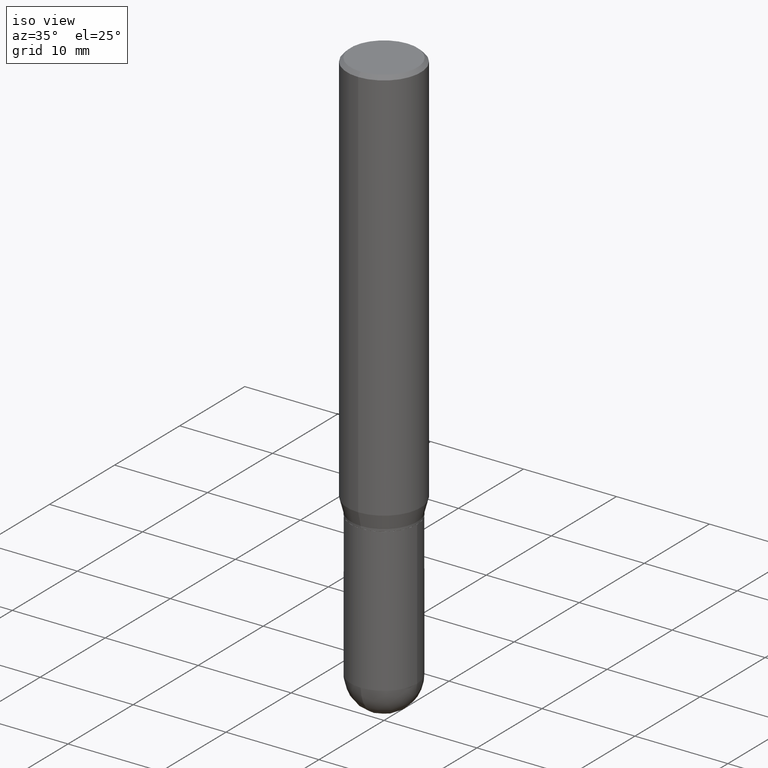
[diagram: clean part render]
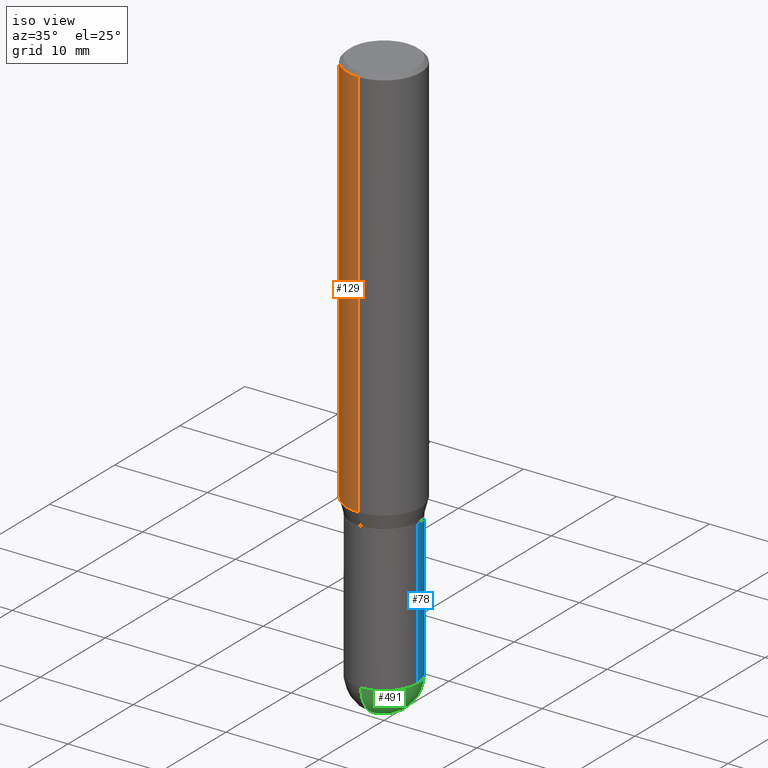
[diagram: same view with three faces highlighted in distinct colors, each labeled with its STEP entity id]
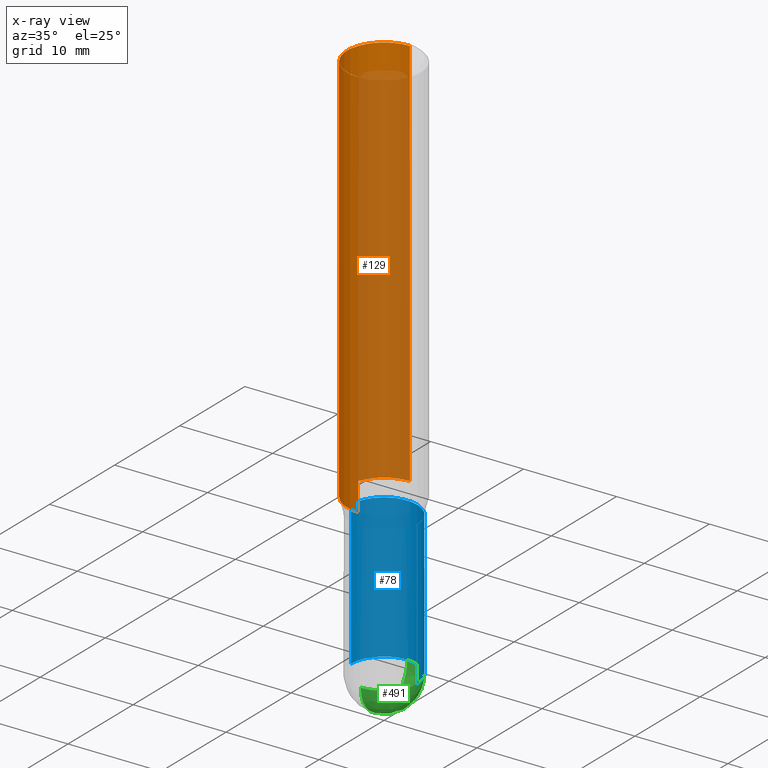
[diagram: x-ray of the same camera — body ghosted, the three highlighted faces saturated]
A machine part, iso view with three faces highlighted in distinct colors.
The next image is the same camera in x-ray (body ghosted, the three faces saturated) — at least one of them is partly hidden behind the body in this view.
Their STEP definitions:

[orange] entity #129 — the highlighted cylindrical surface (partial cylindrical patch) has radius 3.9688 mm, axis along (-0, 0, 1).
#19 = DIRECTION ( 'NONE',  ( -2.445343774695752109E-29, 3.491660391052294645E-15, 1.000000000000000000 ) ) ;
#21 = EDGE_CURVE ( 'NONE', #259, #359, #60, .T. ) ;
#22 = ORIENTED_EDGE ( 'NONE', *, *, #417, .F. ) ;
#35 = LINE ( 'NONE', #506, #58 ) ;
#49 = VERTEX_POINT ( 'NONE', #50 ) ;
#50 = CARTESIAN_POINT ( 'NONE',  ( 1.110223024625197561E-15, 0.1562499999999999445, -0.01500000000000051466 ) ) ;
#56 = DIRECTION ( 'NONE',  ( -6.982962677686265133E-15, -1.000000000000000000, 3.496765431890256920E-15 ) ) ;
#58 = VECTOR ( 'NONE', #203, 39.37007874015748143 ) ;
#60 = CIRCLE ( 'NONE', #351, 0.1562500000000000000 ) ;
#91 = CARTESIAN_POINT ( 'NONE',  ( 4.112073964147616750E-29, -5.871553085609828097E-15, -1.681593404861546848 ) ) ;
#97 = FACE_OUTER_BOUND ( 'NONE', #342, .T. ) ;
#98 = VECTOR ( 'NONE', #151, 39.37007874015748143 ) ;
#104 = VERTEX_POINT ( 'NONE', #292 ) ;
#129 = ADVANCED_FACE ( 'NONE', ( #97 ), #212, .T. ) ;
#138 = ORIENTED_EDGE ( 'NONE', *, *, #308, .T. ) ;
#151 = DIRECTION ( 'NONE',  ( -2.445343774695752109E-29, 3.491660391052294645E-15, 1.000000000000000000 ) ) ;
#197 = CARTESIAN_POINT ( 'NONE',  ( -1.091087918388437956E-15, -0.1562500000000058842, -1.681593404861546404 ) ) ;
#203 = DIRECTION ( 'NONE',  ( -2.445343774695752109E-29, 3.491660391052294645E-15, 1.000000000000000000 ) ) ;
#212 = CYLINDRICAL_SURFACE ( 'NONE', #480, 0.1562500000000000000 ) ;
#259 = VERTEX_POINT ( 'NONE', #352 ) ;
#265 = ORIENTED_EDGE ( 'NONE', *, *, #21, .T. ) ;
#292 = CARTESIAN_POINT ( 'NONE',  ( -1.091087918388478779E-15, -0.1562500000000000833, -0.01499999999999942178 ) ) ;
#308 = EDGE_CURVE ( 'NONE', #359, #104, #502, .T. ) ;
#315 = DIRECTION ( 'NONE',  ( -2.445343774695752109E-29, 3.491660391052294645E-15, 1.000000000000000000 ) ) ;
#331 = DIRECTION ( 'NONE',  ( -2.445343774695752109E-29, 3.491660391052294645E-15, 1.000000000000000000 ) ) ;
#340 = DIRECTION ( 'NONE',  ( -6.982962677686265133E-15, -1.000000000000000000, 3.491660391052295040E-15 ) ) ;
#342 = EDGE_LOOP ( 'NONE', ( #435, #265, #138, #22 ) ) ;
#351 = AXIS2_PLACEMENT_3D ( 'NONE', #91, #331, #56 ) ;
#352 = CARTESIAN_POINT ( 'NONE',  ( 1.110223024625197561E-15, 0.1562499999999941436, -1.681593404861547514 ) ) ;
#358 = CARTESIAN_POINT ( 'NONE',  ( 3.668015662043620053E-31, -5.237490586578430900E-17, -0.01499999999999996822 ) ) ;
#359 = VERTEX_POINT ( 'NONE', #197 ) ;
#377 = CARTESIAN_POINT ( 'NONE',  ( 0.000000000000000000, 0.000000000000000000, 0.000000000000000000 ) ) ;
#385 = CARTESIAN_POINT ( 'NONE',  ( -1.091087918388478976E-15, -0.1562500000000000000, 5.455719361019211000E-16 ) ) ;
#417 = EDGE_CURVE ( 'NONE', #49, #104, #432, .T. ) ;
#426 = DIRECTION ( 'NONE',  ( -6.982962677686265133E-15, -1.000000000000000000, 3.496765431890256920E-15 ) ) ;
#432 = CIRCLE ( 'NONE', #467, 0.1562500000000000000 ) ;
#435 = ORIENTED_EDGE ( 'NONE', *, *, #487, .F. ) ;
#467 = AXIS2_PLACEMENT_3D ( 'NONE', #358, #315, #426 ) ;
#480 = AXIS2_PLACEMENT_3D ( 'NONE', #377, #19, #340 ) ;
#487 = EDGE_CURVE ( 'NONE', #259, #49, #35, .T. ) ;
#502 = LINE ( 'NONE', #385, #98 ) ;
#506 = CARTESIAN_POINT ( 'NONE',  ( 1.110223024625156343E-15, 0.1562500000000000000, -5.455719361019211000E-16 ) ) ;

[blue] entity #78 — the highlighted cylindrical surface (partial cylindrical patch) has radius 3.5712 mm, axis along (-0, 0, 1).
#36 = EDGE_CURVE ( 'NONE', #42, #281, #412, .T. ) ;
#37 = ORIENTED_EDGE ( 'NONE', *, *, #344, .T. ) ;
#41 = EDGE_CURVE ( 'NONE', #245, #285, #388, .T. ) ;
#42 = VERTEX_POINT ( 'NONE', #407 ) ;
#46 = VERTEX_POINT ( 'NONE', #131 ) ;
#68 = CARTESIAN_POINT ( 'NONE',  ( -0.1406000000000000028, -6.174923620442310269E-15, -1.750000000000000222 ) ) ;
#72 = DIRECTION ( 'NONE',  ( -2.445468806185136877E-29, 3.491481338843145188E-15, 1.000000000000000000 ) ) ;
#78 = ADVANCED_FACE ( 'NONE', ( #221 ), #372, .T. ) ;
#94 = ORIENTED_EDGE ( 'NONE', *, *, #201, .T. ) ;
#100 = AXIS2_PLACEMENT_3D ( 'NONE', #405, #473, #362 ) ;
#118 = LINE ( 'NONE', #460, #140 ) ;
#123 = AXIS2_PLACEMENT_3D ( 'NONE', #378, #418, #452 ) ;
#131 = CARTESIAN_POINT ( 'NONE',  ( 0.1406000000000000583, -8.155751259403701439E-15, -2.359399999999999942 ) ) ;
#140 = VECTOR ( 'NONE', #72, 39.37007874015748143 ) ;
#153 = ORIENTED_EDGE ( 'NONE', *, *, #41, .F. ) ;
#166 = EDGE_CURVE ( 'NONE', #46, #245, #416, .T. ) ;
#169 = AXIS2_PLACEMENT_3D ( 'NONE', #174, #333, #295 ) ;
#170 = AXIS2_PLACEMENT_3D ( 'NONE', #181, #365, #439 ) ;
#174 = CARTESIAN_POINT ( 'NONE',  ( 4.279570410823989044E-29, -6.110092342975505460E-15, -1.750000000000000222 ) ) ;
#181 = CARTESIAN_POINT ( 'NONE',  ( 0.000000000000000000, 0.000000000000000000, 0.000000000000000000 ) ) ;
#191 = CARTESIAN_POINT ( 'NONE',  ( 0.1406000000000000028, -7.091896895458194566E-15, -1.750000000000000222 ) ) ;
#201 = EDGE_CURVE ( 'NONE', #46, #42, #222, .T. ) ;
#221 = FACE_OUTER_BOUND ( 'NONE', #488, .T. ) ;
#222 = CIRCLE ( 'NONE', #123, 0.1406000000000000305 ) ;
#230 = CARTESIAN_POINT ( 'NONE',  ( 0.1406000000000000028, -9.818045524826893030E-16, 6.855904546769086274E-30 ) ) ;
#245 = VERTEX_POINT ( 'NONE', #191 ) ;
#272 = CARTESIAN_POINT ( 'NONE',  ( -0.1406000000000000583, -6.174923620442310269E-15, -2.359399999999999942 ) ) ;
#281 = VERTEX_POINT ( 'NONE', #272 ) ;
#285 = VERTEX_POINT ( 'NONE', #68 ) ;
#290 = ORIENTED_EDGE ( 'NONE', *, *, #36, .T. ) ;
#295 = DIRECTION ( 'NONE',  ( 1.000000000000000000, -6.982962677686265133E-15, 0.000000000000000000 ) ) ;
#333 = DIRECTION ( 'NONE',  ( -2.445468806185136597E-29, 3.491481338843145583E-15, 1.000000000000000000 ) ) ;
#344 = EDGE_CURVE ( 'NONE', #281, #285, #118, .T. ) ;
#362 = DIRECTION ( 'NONE',  ( 1.000000000000000000, -6.982962677686270655E-15, 0.000000000000000000 ) ) ;
#365 = DIRECTION ( 'NONE',  ( -2.445468806185136597E-29, 3.491481338843145583E-15, 1.000000000000000000 ) ) ;
#372 = CYLINDRICAL_SURFACE ( 'NONE', #170, 0.1406000000000000028 ) ;
#378 = CARTESIAN_POINT ( 'NONE',  ( 5.769839101313211634E-29, -8.237801070866517629E-15, -2.359399999999999942 ) ) ;
#388 = CIRCLE ( 'NONE', #169, 0.1406000000000000028 ) ;
#405 = CARTESIAN_POINT ( 'NONE',  ( 5.769839101313211634E-29, -8.237801070866517629E-15, -2.359399999999999942 ) ) ;
#407 = CARTESIAN_POINT ( 'NONE',  ( 9.818045524827470871E-16, 0.1405999999999918426, -2.359400000000000386 ) ) ;
#411 = VECTOR ( 'NONE', #450, 39.37007874015748143 ) ;
#412 = CIRCLE ( 'NONE', #100, 0.1406000000000000305 ) ;
#416 = LINE ( 'NONE', #230, #411 ) ;
#418 = DIRECTION ( 'NONE',  ( -2.445468806185136597E-29, 3.491481338843145583E-15, 1.000000000000000000 ) ) ;
#428 = ORIENTED_EDGE ( 'NONE', *, *, #166, .F. ) ;
#439 = DIRECTION ( 'NONE',  ( 1.000000000000000000, -6.982962677686268288E-15, 4.876176775795936353E-29 ) ) ;
#450 = DIRECTION ( 'NONE',  ( -2.445468806185136877E-29, 3.491481338843145188E-15, 1.000000000000000000 ) ) ;
#452 = DIRECTION ( 'NONE',  ( 1.000000000000000000, -6.982962677686270655E-15, 0.000000000000000000 ) ) ;
#460 = CARTESIAN_POINT ( 'NONE',  ( -0.1406000000000000028, 9.990230864787008809E-16, -6.916022736898399140E-30 ) ) ;
#473 = DIRECTION ( 'NONE',  ( -2.445468806185136597E-29, 3.491481338843145583E-15, 1.000000000000000000 ) ) ;
#488 = EDGE_LOOP ( 'NONE', ( #290, #37, #153, #428, #94 ) ) ;

[green] entity #491 — the highlighted spherical surface has radius 3.5712 mm.
#40 = ORIENTED_EDGE ( 'NONE', *, *, #201, .F. ) ;
#42 = VERTEX_POINT ( 'NONE', #407 ) ;
#46 = VERTEX_POINT ( 'NONE', #131 ) ;
#48 = AXIS2_PLACEMENT_3D ( 'NONE', #394, #512, #464 ) ;
#76 = DIRECTION ( 'NONE',  ( -1.000000000000000000, 7.105427357601001070E-15, -4.926315508542082329E-29 ) ) ;
#85 = ORIENTED_EDGE ( 'NONE', *, *, #120, .T. ) ;
#120 = EDGE_CURVE ( 'NONE', #241, #42, #237, .T. ) ;
#122 = FACE_OUTER_BOUND ( 'NONE', #381, .T. ) ;
#123 = AXIS2_PLACEMENT_3D ( 'NONE', #378, #418, #452 ) ;
#131 = CARTESIAN_POINT ( 'NONE',  ( 0.1406000000000000583, -8.155751259403701439E-15, -2.359399999999999942 ) ) ;
#200 = CARTESIAN_POINT ( 'NONE',  ( 5.757815463287349061E-29, -8.255019604862529009E-15, -2.359399999999999942 ) ) ;
#201 = EDGE_CURVE ( 'NONE', #46, #42, #222, .T. ) ;
#222 = CIRCLE ( 'NONE', #123, 0.1406000000000000305 ) ;
#237 = CIRCLE ( 'NONE', #395, 0.1406000000000000860 ) ;
#241 = VERTEX_POINT ( 'NONE', #266 ) ;
#266 = CARTESIAN_POINT ( 'NONE',  ( 6.107660196449910766E-29, -8.737312614105869844E-15, -2.500000000000000000 ) ) ;
#299 = CARTESIAN_POINT ( 'NONE',  ( 5.757815463287349061E-29, -8.255019604862529009E-15, -2.359399999999999942 ) ) ;
#312 = CIRCLE ( 'NONE', #375, 0.1406000000000000860 ) ;
#317 = DIRECTION ( 'NONE',  ( -7.105427357601001859E-15, -1.000000000000000000, 0.000000000000000000 ) ) ;
#324 = ORIENTED_EDGE ( 'NONE', *, *, #339, .F. ) ;
#339 = EDGE_CURVE ( 'NONE', #484, #46, #457, .T. ) ;
#375 = AXIS2_PLACEMENT_3D ( 'NONE', #200, #76, #317 ) ;
#378 = CARTESIAN_POINT ( 'NONE',  ( 5.769839101313211634E-29, -8.237801070866517629E-15, -2.359399999999999942 ) ) ;
#381 = EDGE_LOOP ( 'NONE', ( #500, #85, #40, #324 ) ) ;
#393 = CARTESIAN_POINT ( 'NONE',  ( -9.990230864786434913E-16, -0.1406000000000083017, -2.359399999999999498 ) ) ;
#394 = CARTESIAN_POINT ( 'NONE',  ( 5.757815463287349061E-29, -8.255019604862529009E-15, -2.359399999999999942 ) ) ;
#395 = AXIS2_PLACEMENT_3D ( 'NONE', #299, #402, #444 ) ;
#402 = DIRECTION ( 'NONE',  ( 1.000000000000000000, -6.982962677686265922E-15, 4.883557194083112340E-29 ) ) ;
#407 = CARTESIAN_POINT ( 'NONE',  ( 9.818045524827470871E-16, 0.1405999999999918426, -2.359400000000000386 ) ) ;
#408 = EDGE_CURVE ( 'NONE', #241, #484, #312, .T. ) ;
#418 = DIRECTION ( 'NONE',  ( -2.445468806185136597E-29, 3.491481338843145583E-15, 1.000000000000000000 ) ) ;
#433 = DIRECTION ( 'NONE',  ( 1.000000000000000000, -6.982962677686270655E-15, 0.000000000000000000 ) ) ;
#444 = DIRECTION ( 'NONE',  ( 6.982962677686266711E-15, 1.000000000000000000, 0.000000000000000000 ) ) ;
#446 = AXIS2_PLACEMENT_3D ( 'NONE', #490, #462, #433 ) ;
#452 = DIRECTION ( 'NONE',  ( 1.000000000000000000, -6.982962677686270655E-15, 0.000000000000000000 ) ) ;
#457 = CIRCLE ( 'NONE', #446, 0.1406000000000000305 ) ;
#462 = DIRECTION ( 'NONE',  ( -2.445468806185136597E-29, 3.491481338843145583E-15, 1.000000000000000000 ) ) ;
#464 = DIRECTION ( 'NONE',  ( 6.982962677686265922E-15, 1.000000000000000000, -3.885985766236502230E-15 ) ) ;
#465 = SPHERICAL_SURFACE ( 'NONE', #48, 0.1406000000000000860 ) ;
#484 = VERTEX_POINT ( 'NONE', #393 ) ;
#490 = CARTESIAN_POINT ( 'NONE',  ( 5.769839101313211634E-29, -8.237801070866517629E-15, -2.359399999999999942 ) ) ;
#491 = ADVANCED_FACE ( 'NONE', ( #122 ), #465, .T. ) ;
#500 = ORIENTED_EDGE ( 'NONE', *, *, #408, .F. ) ;
#512 = DIRECTION ( 'NONE',  ( -1.000000000000000000, 6.982962677686265922E-15, -4.883557194083112340E-29 ) ) ;